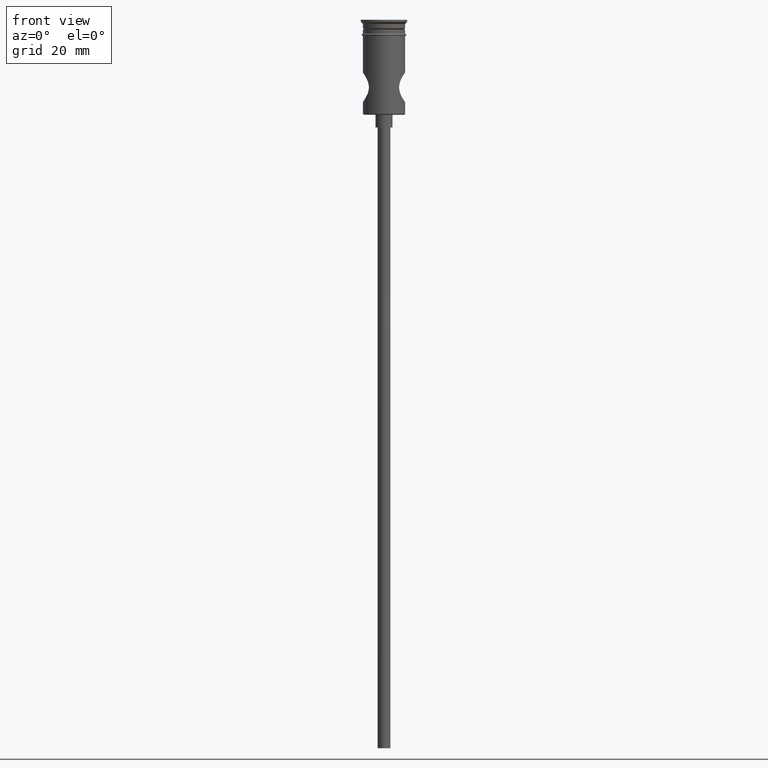
[diagram: clean part render]
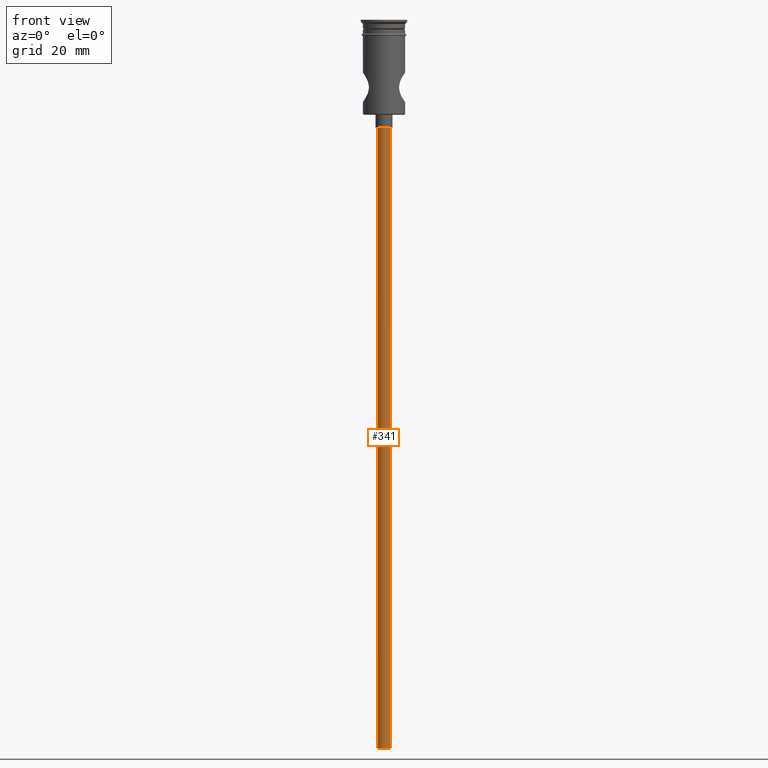
[diagram: same view with one face highlighted and labeled with its STEP entity id]
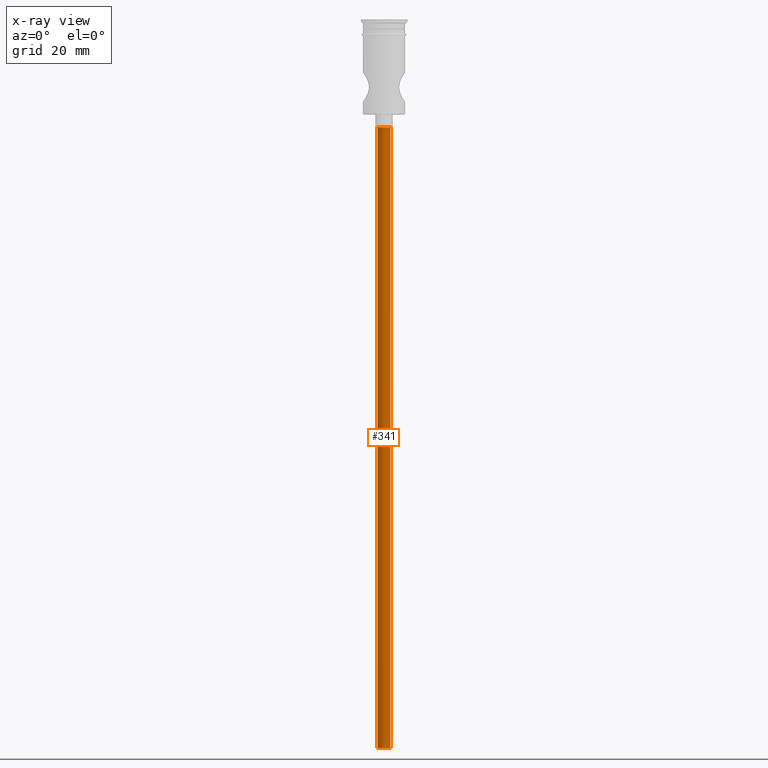
[diagram: x-ray of the same camera — body ghosted, the highlighted face saturated]
A machine part, front view. The second image highlights one B-rep face of the part: STEP entity #341.
The next image is the same camera in x-ray: the body ghosted, the highlighted face saturated — about 0% of this face is hidden behind the body in this view.
In plain terms, the highlighted cylindrical surface (edge-blend (fillet) strip) has radius 1.5 mm, axis along (-0, -0, 1).
Its self-contained STEP definition (entity closure, byte-faithful):
#17 = FACE_OUTER_BOUND ( 'NONE', #1330, .T. ) ;
#25 = DIRECTION ( 'NONE',  ( 1.000000000000000000, 0.000000000000000000, 0.000000000000000000 ) ) ;
#45 = CARTESIAN_POINT ( 'NONE',  ( 0.000000000000000000, 0.000000000000000000, -172.5000000000000000 ) ) ;
#73 = CARTESIAN_POINT ( 'NONE',  ( -1.500000000000000222, 1.836970198721030181E-16, -172.5000000000000000 ) ) ;
#141 = DIRECTION ( 'NONE',  ( -0.000000000000000000, -0.000000000000000000, 1.000000000000000000 ) ) ;
#177 = DIRECTION ( 'NONE',  ( 0.000000000000000000, 0.000000000000000000, -1.000000000000000000 ) ) ;
#190 = CARTESIAN_POINT ( 'NONE',  ( 1.500000000000000222, 0.000000000000000000, -172.5000000000000000 ) ) ;
#257 = VERTEX_POINT ( 'NONE', #1369 ) ;
#278 = DIRECTION ( 'NONE',  ( 0.000000000000000000, 0.000000000000000000, -1.000000000000000000 ) ) ;
#308 = VECTOR ( 'NONE', #514, 1000.000000000000000 ) ;
#312 = CARTESIAN_POINT ( 'NONE',  ( 0.000000000000000000, 0.000000000000000000, -25.50000000000000000 ) ) ;
#341 = ADVANCED_FACE ( 'NONE', ( #17 ), #1267, .T. ) ;
#352 = CIRCLE ( 'NONE', #1382, 1.500000000000000222 ) ;
#372 = ORIENTED_EDGE ( 'NONE', *, *, #1277, .F. ) ;
#413 = DIRECTION ( 'NONE',  ( -1.000000000000000000, 0.000000000000000000, 0.000000000000000000 ) ) ;
#514 = DIRECTION ( 'NONE',  ( -0.000000000000000000, -0.000000000000000000, 1.000000000000000000 ) ) ;
#541 = ORIENTED_EDGE ( 'NONE', *, *, #770, .T. ) ;
#558 = VECTOR ( 'NONE', #1236, 1000.000000000000000 ) ;
#610 = EDGE_CURVE ( 'NONE', #755, #701, #1013, .T. ) ;
#701 = VERTEX_POINT ( 'NONE', #73 ) ;
#755 = VERTEX_POINT ( 'NONE', #190 ) ;
#770 = EDGE_CURVE ( 'NONE', #1102, #257, #352, .T. ) ;
#938 = DIRECTION ( 'NONE',  ( -1.000000000000000000, 0.000000000000000000, 0.000000000000000000 ) ) ;
#952 = CARTESIAN_POINT ( 'NONE',  ( -1.500000000000000222, 1.836970198721030181E-16, -172.5000000000000000 ) ) ;
#1013 = CIRCLE ( 'NONE', #1167, 1.500000000000000222 ) ;
#1034 = EDGE_CURVE ( 'NONE', #755, #1102, #1347, .T. ) ;
#1054 = ORIENTED_EDGE ( 'NONE', *, *, #1034, .T. ) ;
#1056 = LINE ( 'NONE', #952, #308 ) ;
#1102 = VERTEX_POINT ( 'NONE', #1150 ) ;
#1109 = AXIS2_PLACEMENT_3D ( 'NONE', #1259, #141, #25 ) ;
#1150 = CARTESIAN_POINT ( 'NONE',  ( 1.500000000000000222, 0.000000000000000000, -25.50000000000000000 ) ) ;
#1167 = AXIS2_PLACEMENT_3D ( 'NONE', #45, #278, #938 ) ;
#1236 = DIRECTION ( 'NONE',  ( -0.000000000000000000, -0.000000000000000000, 1.000000000000000000 ) ) ;
#1243 = CARTESIAN_POINT ( 'NONE',  ( 1.500000000000000222, 0.000000000000000000, -172.5000000000000000 ) ) ;
#1259 = CARTESIAN_POINT ( 'NONE',  ( 0.000000000000000000, 0.000000000000000000, -172.5000000000000000 ) ) ;
#1267 = CYLINDRICAL_SURFACE ( 'NONE', #1109, 1.500000000000000222 ) ;
#1277 = EDGE_CURVE ( 'NONE', #701, #257, #1056, .T. ) ;
#1317 = ORIENTED_EDGE ( 'NONE', *, *, #610, .F. ) ;
#1330 = EDGE_LOOP ( 'NONE', ( #372, #1317, #1054, #541 ) ) ;
#1347 = LINE ( 'NONE', #1243, #558 ) ;
#1369 = CARTESIAN_POINT ( 'NONE',  ( -1.500000000000000222, 1.836970198721030181E-16, -25.50000000000000000 ) ) ;
#1382 = AXIS2_PLACEMENT_3D ( 'NONE', #312, #177, #413 ) ;